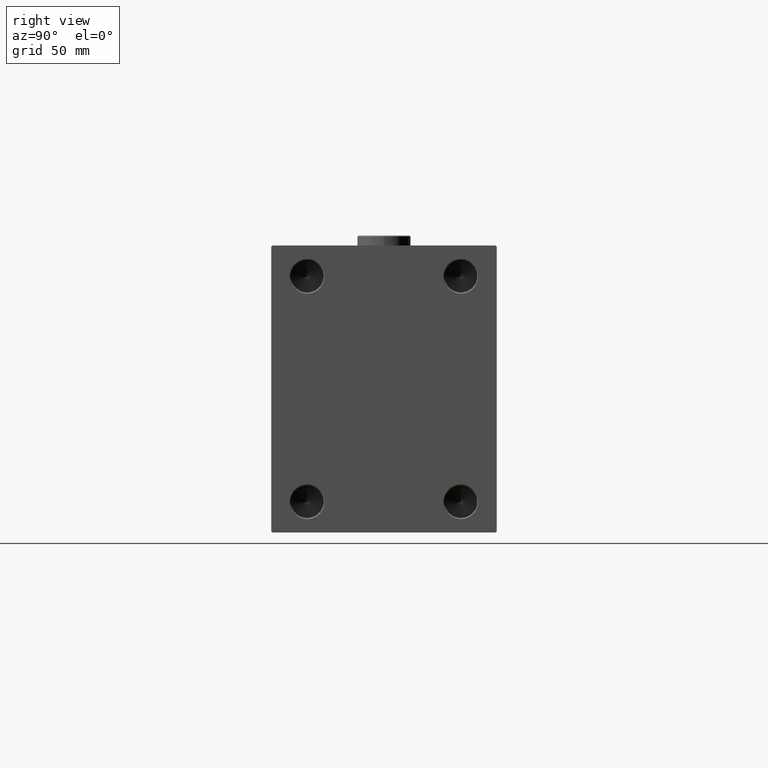
[diagram: clean part render]
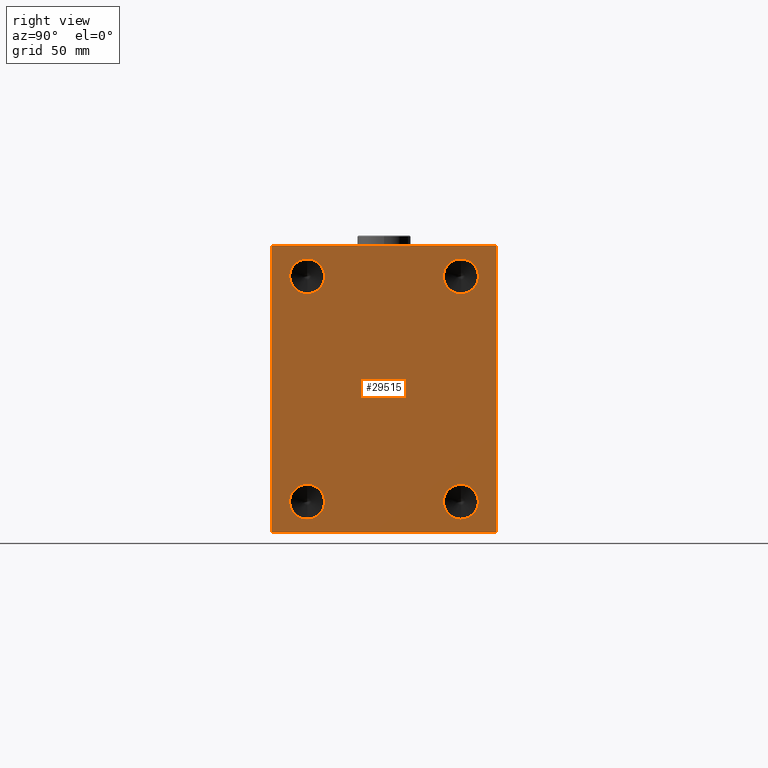
[diagram: same view with one face highlighted and labeled with its STEP entity id]
A machine part, right view. The second image highlights one B-rep face of the part: STEP entity #29515.
In plain terms, the highlighted planar face has unit normal (1, 0, 0).
Its self-contained STEP definition (entity closure, byte-faithful):
#473 = EDGE_CURVE ( 'NONE', #31595, #3914, #17095, .T. ) ;
#669 = ORIENTED_EDGE ( 'NONE', *, *, #8978, .T. ) ;
#743 = CARTESIAN_POINT ( 'NONE',  ( 293.0000000000000000, -37.49999999999999289, 46.49999999999998579 ) ) ;
#769 = CARTESIAN_POINT ( 'NONE',  ( 293.0000000000000000, -37.49999999999999289, -54.99999999999999289 ) ) ;
#2661 = ORIENTED_EDGE ( 'NONE', *, *, #26408, .F. ) ;
#2806 = DIRECTION ( 'NONE',  ( 0.000000000000000000, -9.912705577010325549E-17, 1.000000000000000000 ) ) ;
#2854 = CIRCLE ( 'NONE', #27929, 8.500000000000007105 ) ;
#2972 = VECTOR ( 'NONE', #33804, 1000.000000000000000 ) ;
#3036 = DIRECTION ( 'NONE',  ( 0.000000000000000000, 0.000000000000000000, -1.000000000000000000 ) ) ;
#3260 = EDGE_LOOP ( 'NONE', ( #13192, #2661 ) ) ;
#3409 = DIRECTION ( 'NONE',  ( 1.000000000000000000, -0.000000000000000000, -0.000000000000000000 ) ) ;
#3701 = VECTOR ( 'NONE', #33685, 1000.000000000000000 ) ;
#3727 = EDGE_CURVE ( 'NONE', #3914, #8450, #15527, .T. ) ;
#3914 = VERTEX_POINT ( 'NONE', #24282 ) ;
#3917 = DIRECTION ( 'NONE',  ( 0.000000000000000000, 0.000000000000000000, -1.000000000000000000 ) ) ;
#4042 = VERTEX_POINT ( 'NONE', #4165 ) ;
#4165 = CARTESIAN_POINT ( 'NONE',  ( 293.0000000000000000, -54.50000000000002132, 70.00000000000000000 ) ) ;
#4270 = AXIS2_PLACEMENT_3D ( 'NONE', #21233, #7155, #3917 ) ;
#4355 = CARTESIAN_POINT ( 'NONE',  ( 293.0000000000000000, 62.24999999999851497, 62.25000000000197531 ) ) ;
#4682 = DIRECTION ( 'NONE',  ( 1.000000000000000000, -0.000000000000000000, -0.000000000000000000 ) ) ;
#4753 = EDGE_CURVE ( 'NONE', #31001, #17176, #11598, .T. ) ;
#5719 = CARTESIAN_POINT ( 'NONE',  ( 293.0000000000000000, 37.50000000000000000, -46.49999999999997158 ) ) ;
#5845 = CARTESIAN_POINT ( 'NONE',  ( 293.0000000000000000, -37.49999999999999289, -54.99999999999999289 ) ) ;
#6014 = EDGE_LOOP ( 'NONE', ( #42726, #19693 ) ) ;
#6036 = CARTESIAN_POINT ( 'NONE',  ( 293.0000000000000000, 37.50000000000000000, -54.99999999999999289 ) ) ;
#7155 = DIRECTION ( 'NONE',  ( 1.000000000000000000, 0.000000000000000000, 0.000000000000000000 ) ) ;
#7611 = FACE_OUTER_BOUND ( 'NONE', #38065, .T. ) ;
#8169 = DIRECTION ( 'NONE',  ( 0.000000000000000000, -1.000000000000000000, -1.261617073437677999E-16 ) ) ;
#8450 = VERTEX_POINT ( 'NONE', #37704 ) ;
#8978 = EDGE_CURVE ( 'NONE', #8450, #30743, #36003, .T. ) ;
#9087 = CARTESIAN_POINT ( 'NONE',  ( 293.0000000000000000, -55.00000000000000000, -70.00000000000000000 ) ) ;
#9652 = EDGE_CURVE ( 'NONE', #28300, #31001, #22836, .T. ) ;
#9873 = EDGE_CURVE ( 'NONE', #17176, #31595, #23645, .T. ) ;
#10059 = VERTEX_POINT ( 'NONE', #743 ) ;
#10251 = ORIENTED_EDGE ( 'NONE', *, *, #32284, .F. ) ;
#10384 = FACE_BOUND ( 'NONE', #6014, .T. ) ;
#10695 = ORIENTED_EDGE ( 'NONE', *, *, #15916, .F. ) ;
#11187 = CARTESIAN_POINT ( 'NONE',  ( 293.0000000000000000, -62.25000000000114397, 62.24999999999855049 ) ) ;
#11285 = CARTESIAN_POINT ( 'NONE',  ( 293.0000000000000000, 37.50000000000000000, 55.00000000000000711 ) ) ;
#11598 = LINE ( 'NONE', #28967, #41920 ) ;
#11676 = CIRCLE ( 'NONE', #17586, 8.500000000000007105 ) ;
#12492 = DIRECTION ( 'NONE',  ( 0.000000000000000000, 0.000000000000000000, -1.000000000000000000 ) ) ;
#13122 = CIRCLE ( 'NONE', #39689, 8.500000000000007105 ) ;
#13192 = ORIENTED_EDGE ( 'NONE', *, *, #35750, .F. ) ;
#14086 = FACE_BOUND ( 'NONE', #17744, .T. ) ;
#14104 = CARTESIAN_POINT ( 'NONE',  ( 293.0000000000000000, 37.50000000000000000, 63.50000000000002842 ) ) ;
#14465 = ORIENTED_EDGE ( 'NONE', *, *, #473, .T. ) ;
#15442 = CARTESIAN_POINT ( 'NONE',  ( 293.0000000000000000, 37.50000000000000000, -63.50000000000001421 ) ) ;
#15527 = LINE ( 'NONE', #23826, #38185 ) ;
#15916 = EDGE_CURVE ( 'NONE', #26864, #35060, #43097, .T. ) ;
#16065 = CARTESIAN_POINT ( 'NONE',  ( 293.0000000000000000, 37.50000000000000000, 55.00000000000000711 ) ) ;
#16439 = EDGE_CURVE ( 'NONE', #4042, #28300, #27854, .T. ) ;
#16583 = DIRECTION ( 'NONE',  ( 0.000000000000000000, 0.000000000000000000, -1.000000000000000000 ) ) ;
#16872 = CARTESIAN_POINT ( 'NONE',  ( 293.0000000000000000, 62.25000000000191136, -62.24999999999759126 ) ) ;
#16984 = VECTOR ( 'NONE', #8169, 1000.000000000000000 ) ;
#17095 = LINE ( 'NONE', #16872, #38215 ) ;
#17176 = VERTEX_POINT ( 'NONE', #24330 ) ;
#17490 = CARTESIAN_POINT ( 'NONE',  ( 293.0000000000000000, -37.49999999999999289, 55.00000000000000711 ) ) ;
#17586 = AXIS2_PLACEMENT_3D ( 'NONE', #16065, #23004, #22776 ) ;
#17744 = EDGE_LOOP ( 'NONE', ( #26286, #10695 ) ) ;
#18586 = DIRECTION ( 'NONE',  ( 0.000000000000000000, 0.000000000000000000, -1.000000000000000000 ) ) ;
#19693 = ORIENTED_EDGE ( 'NONE', *, *, #33599, .F. ) ;
#20551 = CIRCLE ( 'NONE', #26455, 8.500000000000007105 ) ;
#20683 = AXIS2_PLACEMENT_3D ( 'NONE', #769, #4682, #39809 ) ;
#21231 = DIRECTION ( 'NONE',  ( 1.000000000000000000, -0.000000000000000000, -0.000000000000000000 ) ) ;
#21233 = CARTESIAN_POINT ( 'NONE',  ( 293.0000000000000000, 0.000000000000000000, 0.000000000000000000 ) ) ;
#21690 = PLANE ( 'NONE',  #4270 ) ;
#21824 = CARTESIAN_POINT ( 'NONE',  ( 293.0000000000000000, 37.50000000000000000, -54.99999999999999289 ) ) ;
#21868 = AXIS2_PLACEMENT_3D ( 'NONE', #6036, #40926, #3036 ) ;
#22074 = VERTEX_POINT ( 'NONE', #15442 ) ;
#22704 = CARTESIAN_POINT ( 'NONE',  ( 293.0000000000000000, 54.99999999999999289, 70.00000000000001421 ) ) ;
#22776 = DIRECTION ( 'NONE',  ( 0.000000000000000000, 0.000000000000000000, -1.000000000000000000 ) ) ;
#22836 = LINE ( 'NONE', #33007, #3701 ) ;
#23004 = DIRECTION ( 'NONE',  ( 1.000000000000000000, -0.000000000000000000, -0.000000000000000000 ) ) ;
#23645 = LINE ( 'NONE', #9087, #2972 ) ;
#23826 = CARTESIAN_POINT ( 'NONE',  ( 293.0000000000000000, 55.00000000000000711, -69.99999999999998579 ) ) ;
#24282 = CARTESIAN_POINT ( 'NONE',  ( 293.0000000000000000, 55.00000000000000711, -69.49999999999998579 ) ) ;
#24330 = CARTESIAN_POINT ( 'NONE',  ( 293.0000000000000000, -54.50000000000000000, -70.00000000000000000 ) ) ;
#24941 = FACE_BOUND ( 'NONE', #3260, .T. ) ;
#25527 = DIRECTION ( 'NONE',  ( 1.000000000000000000, -0.000000000000000000, -0.000000000000000000 ) ) ;
#25710 = DIRECTION ( 'NONE',  ( -0.000000000000000000, 0.7071067811865671127, -0.7071067811865279218 ) ) ;
#25979 = ORIENTED_EDGE ( 'NONE', *, *, #9652, .T. ) ;
#26286 = ORIENTED_EDGE ( 'NONE', *, *, #31940, .F. ) ;
#26368 = CARTESIAN_POINT ( 'NONE',  ( 293.0000000000000000, -37.49999999999999289, 55.00000000000000711 ) ) ;
#26408 = EDGE_CURVE ( 'NONE', #22074, #31443, #44775, .T. ) ;
#26455 = AXIS2_PLACEMENT_3D ( 'NONE', #21824, #25527, #18586 ) ;
#26652 = DIRECTION ( 'NONE',  ( 1.000000000000000000, -0.000000000000000000, -0.000000000000000000 ) ) ;
#26791 = EDGE_LOOP ( 'NONE', ( #31066, #10251 ) ) ;
#26864 = VERTEX_POINT ( 'NONE', #32297 ) ;
#27150 = ORIENTED_EDGE ( 'NONE', *, *, #9873, .T. ) ;
#27523 = DIRECTION ( 'NONE',  ( -0.000000000000000000, 0.7071067811865230368, 0.7071067811865721087 ) ) ;
#27854 = LINE ( 'NONE', #11187, #34976 ) ;
#27929 = AXIS2_PLACEMENT_3D ( 'NONE', #17490, #3409, #16583 ) ;
#28067 = CIRCLE ( 'NONE', #20683, 8.500000000000007105 ) ;
#28300 = VERTEX_POINT ( 'NONE', #44651 ) ;
#28853 = ORIENTED_EDGE ( 'NONE', *, *, #40127, .T. ) ;
#28967 = CARTESIAN_POINT ( 'NONE',  ( 293.0000000000000000, -62.24999999999849365, -62.25000000000193978 ) ) ;
#29515 = ADVANCED_FACE ( 'NONE', ( #14086, #10384, #35106, #24941, #7611 ), #21690, .T. ) ;
#29622 = VERTEX_POINT ( 'NONE', #32783 ) ;
#30580 = DIRECTION ( 'NONE',  ( 0.000000000000000000, 0.000000000000000000, -1.000000000000000000 ) ) ;
#30743 = VERTEX_POINT ( 'NONE', #31130 ) ;
#30817 = AXIS2_PLACEMENT_3D ( 'NONE', #5845, #26652, #30580 ) ;
#31001 = VERTEX_POINT ( 'NONE', #41698 ) ;
#31066 = ORIENTED_EDGE ( 'NONE', *, *, #39245, .F. ) ;
#31130 = CARTESIAN_POINT ( 'NONE',  ( 293.0000000000000000, 54.50000000000004974, 70.00000000000001421 ) ) ;
#31256 = CARTESIAN_POINT ( 'NONE',  ( 293.0000000000000000, -37.49999999999999289, -46.49999999999997158 ) ) ;
#31443 = VERTEX_POINT ( 'NONE', #5719 ) ;
#31595 = VERTEX_POINT ( 'NONE', #42443 ) ;
#31940 = EDGE_CURVE ( 'NONE', #35060, #26864, #11676, .T. ) ;
#32284 = EDGE_CURVE ( 'NONE', #39012, #34002, #44840, .T. ) ;
#32297 = CARTESIAN_POINT ( 'NONE',  ( 293.0000000000000000, 37.50000000000000000, 46.49999999999998579 ) ) ;
#32539 = DIRECTION ( 'NONE',  ( -0.000000000000000000, -0.7071067811865672237, 0.7071067811865279218 ) ) ;
#32612 = ORIENTED_EDGE ( 'NONE', *, *, #16439, .T. ) ;
#32776 = AXIS2_PLACEMENT_3D ( 'NONE', #11285, #21231, #43178 ) ;
#32783 = CARTESIAN_POINT ( 'NONE',  ( 293.0000000000000000, -37.49999999999999289, 63.50000000000002842 ) ) ;
#33007 = CARTESIAN_POINT ( 'NONE',  ( 293.0000000000000000, -55.00000000000000000, 70.00000000000000000 ) ) ;
#33118 = ORIENTED_EDGE ( 'NONE', *, *, #4753, .T. ) ;
#33599 = EDGE_CURVE ( 'NONE', #10059, #29622, #13122, .T. ) ;
#33685 = DIRECTION ( 'NONE',  ( 0.000000000000000000, 0.000000000000000000, -1.000000000000000000 ) ) ;
#33804 = DIRECTION ( 'NONE',  ( 0.000000000000000000, 1.000000000000000000, 1.261617073437677752E-16 ) ) ;
#34002 = VERTEX_POINT ( 'NONE', #31256 ) ;
#34441 = EDGE_CURVE ( 'NONE', #29622, #10059, #2854, .T. ) ;
#34830 = CARTESIAN_POINT ( 'NONE',  ( 293.0000000000000000, -37.49999999999999289, -63.50000000000001421 ) ) ;
#34976 = VECTOR ( 'NONE', #38461, 1000.000000000000000 ) ;
#35060 = VERTEX_POINT ( 'NONE', #14104 ) ;
#35106 = FACE_BOUND ( 'NONE', #26791, .T. ) ;
#35750 = EDGE_CURVE ( 'NONE', #31443, #22074, #20551, .T. ) ;
#36003 = LINE ( 'NONE', #4355, #38374 ) ;
#37704 = CARTESIAN_POINT ( 'NONE',  ( 293.0000000000000000, 54.99999999999999289, 69.50000000000009948 ) ) ;
#38065 = EDGE_LOOP ( 'NONE', ( #28853, #32612, #25979, #33118, #27150, #14465, #41020, #669 ) ) ;
#38185 = VECTOR ( 'NONE', #2806, 1000.000000000000000 ) ;
#38215 = VECTOR ( 'NONE', #27523, 999.9999999999998863 ) ;
#38374 = VECTOR ( 'NONE', #32539, 1000.000000000000000 ) ;
#38461 = DIRECTION ( 'NONE',  ( 0.000000000000000000, -0.7071067811865328068, -0.7071067811865622277 ) ) ;
#39012 = VERTEX_POINT ( 'NONE', #34830 ) ;
#39245 = EDGE_CURVE ( 'NONE', #34002, #39012, #28067, .T. ) ;
#39590 = LINE ( 'NONE', #22704, #16984 ) ;
#39689 = AXIS2_PLACEMENT_3D ( 'NONE', #26368, #40462, #12492 ) ;
#39809 = DIRECTION ( 'NONE',  ( 0.000000000000000000, 0.000000000000000000, -1.000000000000000000 ) ) ;
#40127 = EDGE_CURVE ( 'NONE', #30743, #4042, #39590, .T. ) ;
#40462 = DIRECTION ( 'NONE',  ( 1.000000000000000000, -0.000000000000000000, -0.000000000000000000 ) ) ;
#40926 = DIRECTION ( 'NONE',  ( 1.000000000000000000, -0.000000000000000000, -0.000000000000000000 ) ) ;
#41020 = ORIENTED_EDGE ( 'NONE', *, *, #3727, .T. ) ;
#41698 = CARTESIAN_POINT ( 'NONE',  ( 293.0000000000000000, -55.00000000000000000, -69.50000000000002842 ) ) ;
#41920 = VECTOR ( 'NONE', #25710, 1000.000000000000000 ) ;
#42443 = CARTESIAN_POINT ( 'NONE',  ( 293.0000000000000000, 54.50000000000004263, -69.99999999999998579 ) ) ;
#42726 = ORIENTED_EDGE ( 'NONE', *, *, #34441, .F. ) ;
#43097 = CIRCLE ( 'NONE', #32776, 8.500000000000007105 ) ;
#43178 = DIRECTION ( 'NONE',  ( 0.000000000000000000, 0.000000000000000000, -1.000000000000000000 ) ) ;
#44651 = CARTESIAN_POINT ( 'NONE',  ( 293.0000000000000000, -55.00000000000000000, 69.50000000000000000 ) ) ;
#44775 = CIRCLE ( 'NONE', #21868, 8.500000000000007105 ) ;
#44840 = CIRCLE ( 'NONE', #30817, 8.500000000000007105 ) ;